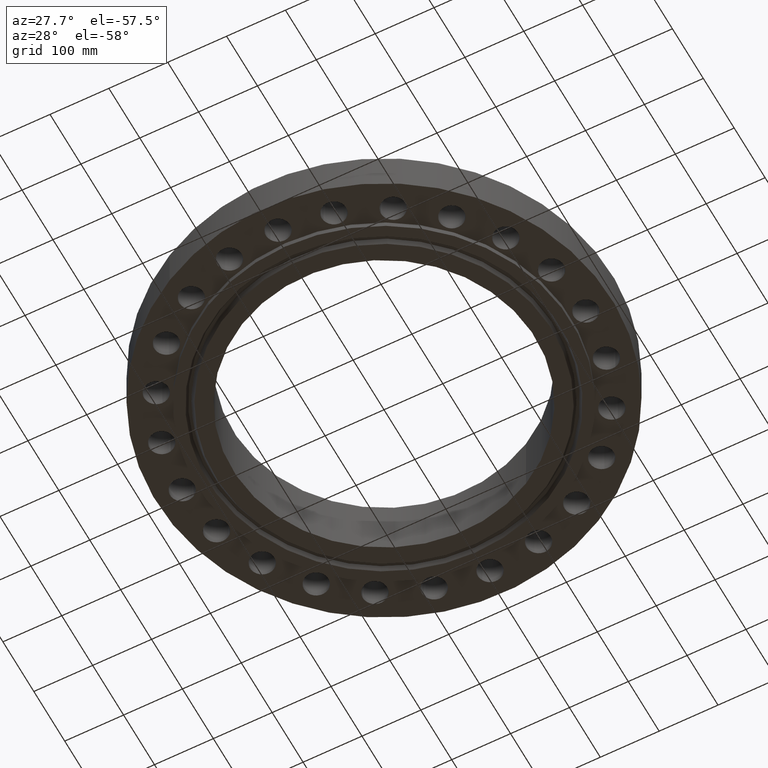
[diagram: clean part render]
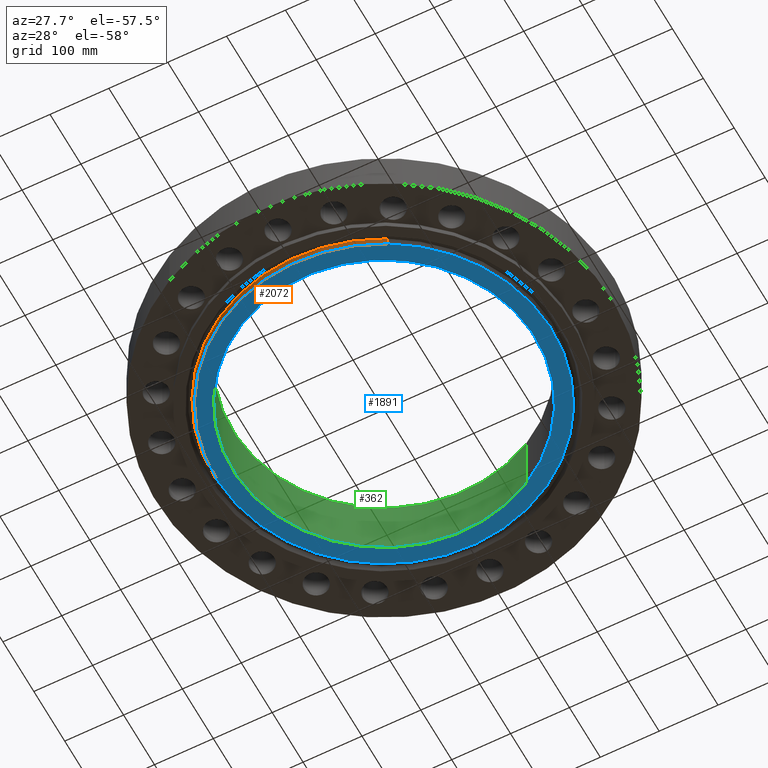
[diagram: same view with three faces highlighted in distinct colors, each labeled with its STEP entity id]
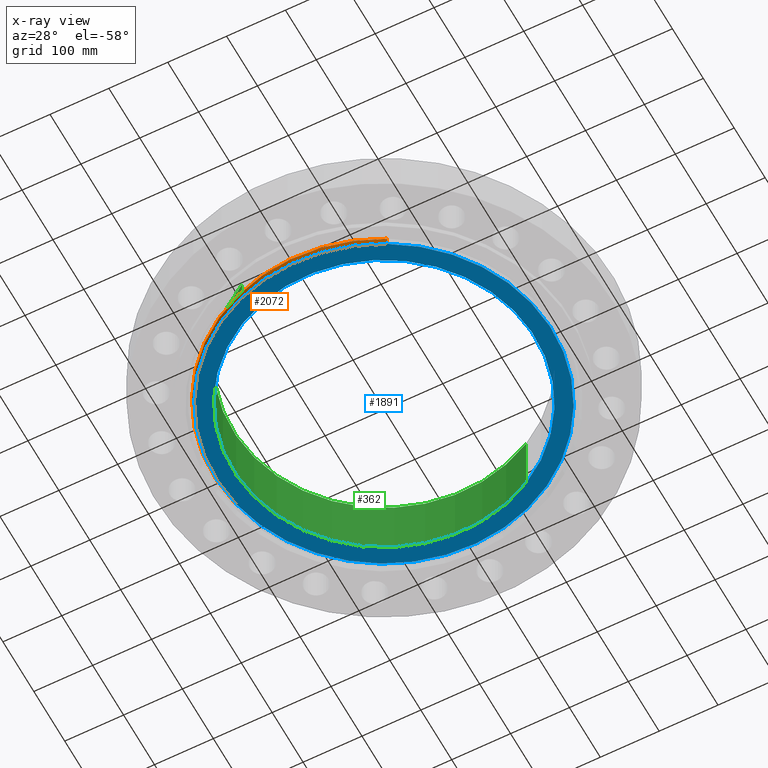
[diagram: x-ray of the same camera — body ghosted, the three highlighted faces saturated]
A machine part, auxiliary view with three faces highlighted in distinct colors.
The next image is the same camera in x-ray (body ghosted, the three faces saturated) — at least one of them is partly hidden behind the body in this view.
Their STEP definitions:

[orange] entity #2072 — the highlighted conical surface has half-angle 23 deg.
#1880=AXIS2_PLACEMENT_3D('Circle Axis2P3D',#1878,#1879,$) ;
#2034=AXIS2_PLACEMENT_3D('Circle Axis2P3D',#2032,#2033,$) ;
#2047=AXIS2_PLACEMENT_3D('Cone Axis2P3D',#2044,#2045,#2046) ;
#1873=CARTESIAN_POINT('Vertex',(-5.38603429964,9.85906965421,-0.375000000001)) ;
#1875=CARTESIAN_POINT('Vertex',(5.38603429964,-9.85906965421,-0.375000000001)) ;
#1878=CARTESIAN_POINT('Axis2P3D Location',(2.23792987641E-015,0.,-0.375000000001)) ;
#2010=CARTESIAN_POINT('Vertex',(5.45459903157,-9.98457655415,-0.0380793044696)) ;
#2017=CARTESIAN_POINT('Vertex',(-5.45459903157,9.98457655415,-0.0380793044696)) ;
#2032=CARTESIAN_POINT('Axis2P3D Location',(0.,0.,-0.0380793044696)) ;
#2044=CARTESIAN_POINT('Axis2P3D Location',(0.,0.,-0.435000000002)) ;
#2049=CARTESIAN_POINT('Line Origine',(-5.4203166656,9.92182310418,-0.206539652236)) ;
#2054=CARTESIAN_POINT('Line Origine',(5.4203166656,-9.92182310418,-0.206539652236)) ;
#1879=DIRECTION('Axis2P3D Direction',(0.,0.,-0.0393700787402)) ;
#2033=DIRECTION('Axis2P3D Direction',(0.,0.,0.0393700787402)) ;
#2045=DIRECTION('Axis2P3D Direction',(0.,0.,0.0393700787402)) ;
#2046=DIRECTION('Axis2P3D XDirection',(-0.0188750212049,0.0345504945626,0.)) ;
#2050=DIRECTION('Vector Direction',(-0.00737505833565,0.0134999537303,0.0362403485611)) ;
#2055=DIRECTION('Vector Direction',(0.00737505833565,-0.0134999537303,0.0362403485611)) ;
#2051=VECTOR('Line Direction',#2050,0.0393700787402) ;
#2056=VECTOR('Line Direction',#2055,0.0393700787402) ;
#2067=ORIENTED_EDGE('',*,*,#2058,.F.) ;
#2068=ORIENTED_EDGE('',*,*,#2036,.F.) ;
#2069=ORIENTED_EDGE('',*,*,#2053,.T.) ;
#2070=ORIENTED_EDGE('',*,*,#1882,.F.) ;
#2072=ADVANCED_FACE('PartBody',(#2071),#2048,.T.) ;
#1881=CIRCLE('generated circle',#1880,11.23435) ;
#2035=CIRCLE('generated circle',#2034,11.3773643504) ;
#2048=CONICAL_SURFACE('Cone',#2047,11.2088815111,0.401425727959) ;
#1882=EDGE_CURVE('',#1876,#1874,#1881,.T.) ;
#2036=EDGE_CURVE('',#2018,#2011,#2035,.T.) ;
#2053=EDGE_CURVE('',#2018,#1874,#2052,.F.) ;
#2058=EDGE_CURVE('',#2011,#1876,#2057,.F.) ;
#2066=EDGE_LOOP('',(#2067,#2068,#2069,#2070)) ;
#2071=FACE_OUTER_BOUND('',#2066,.T.) ;
#2052=LINE('Line',#2049,#2051) ;
#2057=LINE('Line',#2054,#2056) ;
#1874=VERTEX_POINT('',#1873) ;
#1876=VERTEX_POINT('',#1875) ;
#2011=VERTEX_POINT('',#2010) ;
#2018=VERTEX_POINT('',#2017) ;

[blue] entity #1891 — the highlighted planar face has unit normal (0, 0, -1).
#334=AXIS2_PLACEMENT_3D('Circle Axis2P3D',#332,#333,$) ;
#353=AXIS2_PLACEMENT_3D('Circle Axis2P3D',#351,#352,$) ;
#1844=AXIS2_PLACEMENT_3D('Plane Axis2P3D',#1841,#1842,#1843) ;
#1871=AXIS2_PLACEMENT_3D('Circle Axis2P3D',#1869,#1870,$) ;
#1880=AXIS2_PLACEMENT_3D('Circle Axis2P3D',#1878,#1879,$) ;
#329=CARTESIAN_POINT('Vertex',(4.84219793992,8.86358387513,-0.375000000001)) ;
#332=CARTESIAN_POINT('Axis2P3D Location',(0.,0.,-0.375000000002)) ;
#336=CARTESIAN_POINT('Vertex',(-4.84219793992,-8.86358387513,-0.375000000001)) ;
#351=CARTESIAN_POINT('Axis2P3D Location',(0.,0.,-0.375000000002)) ;
#1841=CARTESIAN_POINT('Axis2P3D Location',(0.,10.1,-0.375000000001)) ;
#1869=CARTESIAN_POINT('Axis2P3D Location',(3.35689481461E-015,-2.23792987641E-015,-0.375000000001)) ;
#1873=CARTESIAN_POINT('Vertex',(-5.38603429964,9.85906965421,-0.375000000001)) ;
#1875=CARTESIAN_POINT('Vertex',(5.38603429964,-9.85906965421,-0.375000000001)) ;
#1878=CARTESIAN_POINT('Axis2P3D Location',(2.23792987641E-015,0.,-0.375000000001)) ;
#333=DIRECTION('Axis2P3D Direction',(0.,0.,-0.0393700787402)) ;
#352=DIRECTION('Axis2P3D Direction',(0.,0.,-0.0393700787402)) ;
#1842=DIRECTION('Axis2P3D Direction',(0.,0.,-0.0393700787402)) ;
#1843=DIRECTION('Axis2P3D XDirection',(0.0393700787402,0.,0.)) ;
#1870=DIRECTION('Axis2P3D Direction',(0.,0.,-0.0393700787402)) ;
#1879=DIRECTION('Axis2P3D Direction',(0.,0.,-0.0393700787402)) ;
#1884=ORIENTED_EDGE('',*,*,#1877,.T.) ;
#1885=ORIENTED_EDGE('',*,*,#1882,.T.) ;
#1888=ORIENTED_EDGE('',*,*,#338,.F.) ;
#1889=ORIENTED_EDGE('',*,*,#355,.F.) ;
#1890=FACE_BOUND('',#1887,.T.) ;
#1891=ADVANCED_FACE('PartBody',(#1886,#1890),#1845,.T.) ;
#335=CIRCLE('generated circle',#334,10.1) ;
#354=CIRCLE('generated circle',#353,10.1) ;
#1872=CIRCLE('generated circle',#1871,11.23435) ;
#1881=CIRCLE('generated circle',#1880,11.23435) ;
#338=EDGE_CURVE('',#330,#337,#335,.T.) ;
#355=EDGE_CURVE('',#337,#330,#354,.T.) ;
#1877=EDGE_CURVE('',#1874,#1876,#1872,.T.) ;
#1882=EDGE_CURVE('',#1876,#1874,#1881,.T.) ;
#1883=EDGE_LOOP('',(#1884,#1885)) ;
#1887=EDGE_LOOP('',(#1888,#1889)) ;
#1886=FACE_OUTER_BOUND('',#1883,.T.) ;
#1845=PLANE('',#1844) ;
#330=VERTEX_POINT('',#329) ;
#337=VERTEX_POINT('',#336) ;
#1874=VERTEX_POINT('',#1873) ;
#1876=VERTEX_POINT('',#1875) ;

[green] entity #362 — the highlighted cylindrical surface (partial cylindrical patch) has radius 256.54 mm, axis along (0, 0, -1).
#303=AXIS2_PLACEMENT_3D('Circle Axis2P3D',#301,#302,$) ;
#323=AXIS2_PLACEMENT_3D('Cylinder Axis2P3D',#320,#321,#322) ;
#353=AXIS2_PLACEMENT_3D('Circle Axis2P3D',#351,#352,$) ;
#301=CARTESIAN_POINT('Axis2P3D Location',(0.,0.,4.00000000002)) ;
#305=CARTESIAN_POINT('Vertex',(-4.84219793992,-8.86358387513,4.00000000002)) ;
#307=CARTESIAN_POINT('Vertex',(4.84219793992,8.86358387513,4.00000000002)) ;
#320=CARTESIAN_POINT('Axis2P3D Location',(0.,0.,1.81250000001)) ;
#325=CARTESIAN_POINT('Line Origine',(4.84219793992,8.86358387513,1.81250000001)) ;
#329=CARTESIAN_POINT('Vertex',(4.84219793992,8.86358387513,-0.375000000001)) ;
#336=CARTESIAN_POINT('Vertex',(-4.84219793992,-8.86358387513,-0.375000000001)) ;
#339=CARTESIAN_POINT('Line Origine',(-4.84219793992,-8.86358387513,1.81250000001)) ;
#351=CARTESIAN_POINT('Axis2P3D Location',(0.,0.,-0.375000000002)) ;
#302=DIRECTION('Axis2P3D Direction',(0.,0.,-0.0393700787402)) ;
#321=DIRECTION('Axis2P3D Direction',(0.,0.,-0.0393700787402)) ;
#322=DIRECTION('Axis2P3D XDirection',(-0.0188750212049,-0.0345504945626,0.)) ;
#326=DIRECTION('Vector Direction',(0.,0.,-0.0393700787402)) ;
#340=DIRECTION('Vector Direction',(0.,0.,-0.0393700787402)) ;
#352=DIRECTION('Axis2P3D Direction',(0.,0.,-0.0393700787402)) ;
#327=VECTOR('Line Direction',#326,0.0393700787402) ;
#341=VECTOR('Line Direction',#340,0.0393700787402) ;
#357=ORIENTED_EDGE('',*,*,#309,.F.) ;
#358=ORIENTED_EDGE('',*,*,#343,.T.) ;
#359=ORIENTED_EDGE('',*,*,#355,.T.) ;
#360=ORIENTED_EDGE('',*,*,#331,.F.) ;
#362=ADVANCED_FACE('PartBody',(#361),#324,.F.) ;
#304=CIRCLE('generated circle',#303,10.1) ;
#354=CIRCLE('generated circle',#353,10.1) ;
#324=CYLINDRICAL_SURFACE('generated cylinder',#323,10.1) ;
#309=EDGE_CURVE('',#306,#308,#304,.T.) ;
#331=EDGE_CURVE('',#308,#330,#328,.T.) ;
#343=EDGE_CURVE('',#306,#337,#342,.T.) ;
#355=EDGE_CURVE('',#337,#330,#354,.T.) ;
#356=EDGE_LOOP('',(#357,#358,#359,#360)) ;
#361=FACE_OUTER_BOUND('',#356,.T.) ;
#328=LINE('Line',#325,#327) ;
#342=LINE('Line',#339,#341) ;
#306=VERTEX_POINT('',#305) ;
#308=VERTEX_POINT('',#307) ;
#330=VERTEX_POINT('',#329) ;
#337=VERTEX_POINT('',#336) ;